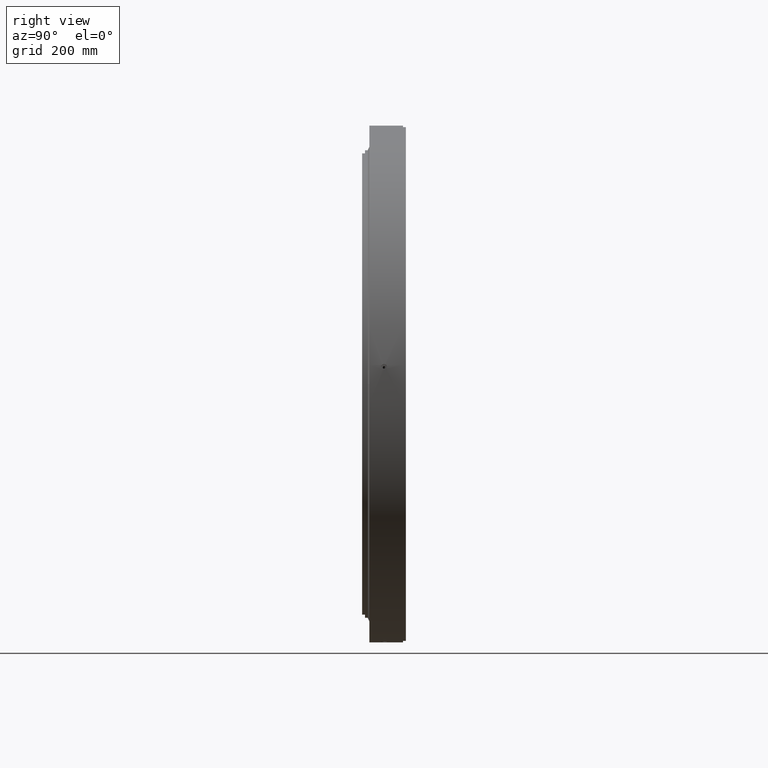
[diagram: clean part render]
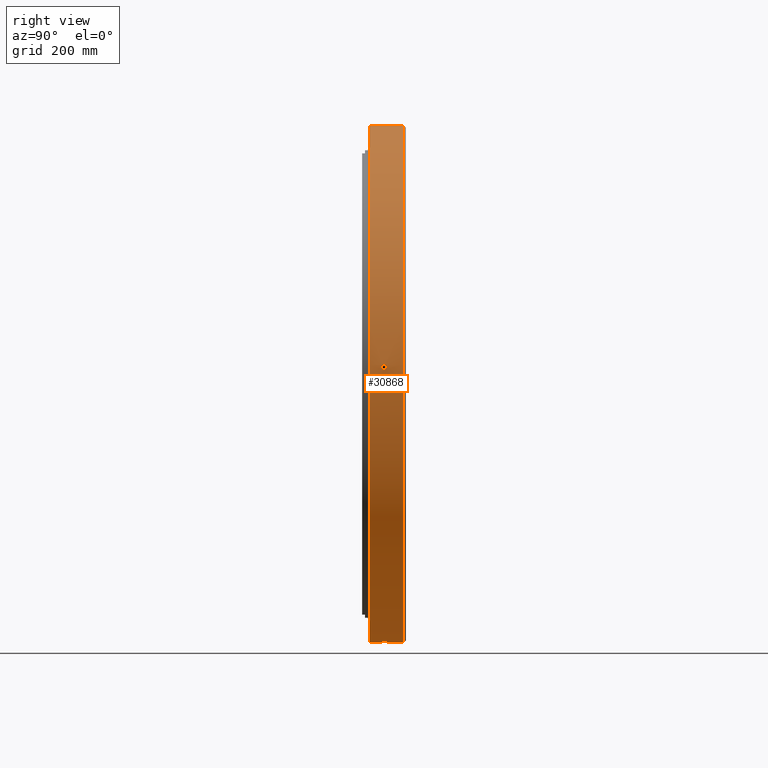
[diagram: same view with one face highlighted and labeled with its STEP entity id]
A machine part, right view. The second image highlights one B-rep face of the part: STEP entity #30868.
In plain terms, the highlighted cylindrical surface (partial cylindrical patch) has radius 885 mm, axis along (0, -1, -0).
Its self-contained STEP definition (entity closure, byte-faithful):
#24 = CYLINDRICAL_SURFACE ( 'NONE', #15015, 885.0000000000000000 ) ;
#264 = CARTESIAN_POINT ( 'NONE',  ( 5.868486117720941300E-015, -49.99999999999983700, -1.747108677692886300E-015 ) ) ;
#267 = ORIENTED_EDGE ( 'NONE', *, *, #1786, .T. ) ;
#404 = CARTESIAN_POINT ( 'NONE',  ( 62.29941552682247900, -8.990270794557361000, -882.8047069699458700 ) ) ;
#762 = FACE_BOUND ( 'NONE', #16163, .T. ) ;
#877 = CARTESIAN_POINT ( 'NONE',  ( 56.25334402260552500, 9.871374846293925000, -883.2104302514859500 ) ) ;
#1034 = AXIS2_PLACEMENT_3D ( 'NONE', #264, #17235, #2693 ) ;
#1195 = CARTESIAN_POINT ( 'NONE',  ( 56.57931960088866700, 9.919929255017958500, -883.1896104815193700 ) ) ;
#1300 = CARTESIAN_POINT ( 'NONE',  ( 57.23361204977461400, 9.984318080411858500, -883.1474515168646300 ) ) ;
#1402 = CARTESIAN_POINT ( 'NONE',  ( 49.22887499094591800, -4.996086056304803500, -883.6297536602289700 ) ) ;
#1665 = CARTESIAN_POINT ( 'NONE',  ( 57.55988368185703800, 10.00011495659899000, -883.1262458705939500 ) ) ;
#1739 = CARTESIAN_POINT ( 'NONE',  ( 48.92154014800890100, -4.419255500901696700, -883.6468223199005900 ) ) ;
#1786 = EDGE_CURVE ( 'NONE', #27365, #23092, #23602, .T. ) ;
#1822 = EDGE_CURVE ( 'NONE', #18197, #6204, #4213, .T. ) ;
#1921 = CARTESIAN_POINT ( 'NONE',  ( 54.35569938037411200, -9.360757507324834100, -883.3292417374498200 ) ) ;
#1953 = CARTESIAN_POINT ( 'NONE',  ( 58.53615190726176800, 9.999768161563082500, -883.0622539434684800 ) ) ;
#1988 = CARTESIAN_POINT ( 'NONE',  ( 883.6889657356722400, -2.267618321066065900, 48.15408519604177000 ) ) ;
#2086 = EDGE_LOOP ( 'NONE', ( #14057, #17652, #22230, #25609 ) ) ;
#2094 = CARTESIAN_POINT ( 'NONE',  ( 883.4190755897365100, -8.676807746895006400, 52.87752417394028700 ) ) ;
#2201 = CARTESIAN_POINT ( 'NONE',  ( 882.8681250928948400, -9.366456902458196500, 61.39190215961385600 ) ) ;
#2310 = CARTESIAN_POINT ( 'NONE',  ( 882.3997151043480500, -1.314305108829452600, 67.79203143187361000 ) ) ;
#2498 = EDGE_CURVE ( 'NONE', #22643, #16575, #27152, .T. ) ;
#2693 = DIRECTION ( 'NONE',  ( 5.551115123125782700E-017, -3.136223233404397100E-017, 1.000000000000000000 ) ) ;
#2838 = ORIENTED_EDGE ( 'NONE', *, *, #23667, .T. ) ;
#2872 = CARTESIAN_POINT ( 'NONE',  ( 62.87260099703114200, -8.683411951547551400, -882.7640291631956900 ) ) ;
#3133 = CARTESIAN_POINT ( 'NONE',  ( 47.96264874420401700, -1.301011658162119400, -883.6993836490094100 ) ) ;
#3195 = CARTESIAN_POINT ( 'NONE',  ( 59.18362575277633700, 9.936341989846640700, -883.0190910164627700 ) ) ;
#3224 = CARTESIAN_POINT ( 'NONE',  ( 48.64372355433995700, -3.829898801211826700, -883.6621719792250400 ) ) ;
#3297 = CARTESIAN_POINT ( 'NONE',  ( 60.14964515407002900, 9.743822340480907200, -882.9536365812396100 ) ) ;
#3767 = DIRECTION ( 'NONE',  ( 5.551115123125782700E-017, -3.528251137579946500E-017, 1.000000000000000000 ) ) ;
#3838 = CARTESIAN_POINT ( 'NONE',  ( 60.46976864643722400, 9.663293480045704000, -882.9317669364299900 ) ) ;
#3902 = VECTOR ( 'NONE', #26225, 1000.000000000000000 ) ;
#4213 = CIRCLE ( 'NONE', #4615, 885.0000000000000000 ) ;
#4355 = CARTESIAN_POINT ( 'NONE',  ( 51.29065756894728200, -7.516660450571203400, -883.5124974038608300 ) ) ;
#4417 = CARTESIAN_POINT ( 'NONE',  ( 883.6742052955746700, -3.215786242672058000, 48.42424938727476300 ) ) ;
#4536 = CARTESIAN_POINT ( 'NONE',  ( 883.3292417374499300, -9.360757507324773700, 54.35569938037723100 ) ) ;
#4615 = AXIS2_PLACEMENT_3D ( 'NONE', #19290, #19249, #19152 ) ;
#4644 = CARTESIAN_POINT ( 'NONE',  ( 882.7640291631953500, -8.683411951547482100, 62.87260099703417600 ) ) ;
#4739 = CARTESIAN_POINT ( 'NONE',  ( 882.3947377639051400, -1.352003341410987000E-008, 67.85666339107274300 ) ) ;
#4989 = CARTESIAN_POINT ( 'NONE',  ( 48.15408519603870000, -2.267618321066129800, -883.6889657356727000 ) ) ;
#5334 = CARTESIAN_POINT ( 'NONE',  ( 61.09434352132870300, 9.473099254216954500, -882.8887694241772100 ) ) ;
#5349 = CARTESIAN_POINT ( 'NONE',  ( 61.70669037884856300, 9.253145743511796100, -882.8462809660363700 ) ) ;
#5390 = CARTESIAN_POINT ( 'NONE',  ( 67.34280538162494200, -3.235007051154269700, -882.4341386171348600 ) ) ;
#5635 = CARTESIAN_POINT ( 'NONE',  ( 62.29491581016201700, 8.974476701232275000, -882.8048633872322200 ) ) ;
#5665 = CARTESIAN_POINT ( 'NONE',  ( 63.95634487619975100, -7.959311221972182400, -882.6861736147492400 ) ) ;
#5713 = VECTOR ( 'NONE', #8485, 1000.000000000000000 ) ;
#5750 = CARTESIAN_POINT ( 'NONE',  ( 62.87089883971965100, 8.666000667659735900, -882.7640304379370900 ) ) ;
#5854 = CARTESIAN_POINT ( 'NONE',  ( 63.15427812439049400, 8.495789209440225400, -882.7437974112118600 ) ) ;
#6071 = CARTESIAN_POINT ( 'NONE',  ( 63.97218189525186500, 7.947530899147825100, -882.6850280802759700 ) ) ;
#6204 = VERTEX_POINT ( 'NONE', #15080 ) ;
#6228 = CARTESIAN_POINT ( 'NONE',  ( 64.47440136699485400, 7.533584005054158300, -882.6484376526019600 ) ) ;
#6382 = CARTESIAN_POINT ( 'NONE',  ( 49.39817126832417000, -5.279511856852857400, -883.6203110567349800 ) ) ;
#6500 = CARTESIAN_POINT ( 'NONE',  ( 60.45435138532937500, -9.667447787200632800, -882.9328229387989500 ) ) ;
#6594 = CARTESIAN_POINT ( 'NONE',  ( 65.16468817020344800, 6.841700400301204100, -882.5976527536390700 ) ) ;
#6639 = CARTESIAN_POINT ( 'NONE',  ( 53.45060005424829100, -8.984165439132979700, -883.3846267669554200 ) ) ;
#6714 = ORIENTED_EDGE ( 'NONE', *, *, #2498, .T. ) ;
#6892 = CARTESIAN_POINT ( 'NONE',  ( 883.6468223199007100, -4.419255500901635400, 48.92154014801199200 ) ) ;
#6932 = CARTESIAN_POINT ( 'NONE',  ( 65.80444305810468100, -6.111912450537783300, -882.5502301899014100 ) ) ;
#6953 = CARTESIAN_POINT ( 'NONE',  ( 48.42424938727167200, -3.215786242672114400, -883.6742052955746700 ) ) ;
#7001 = CARTESIAN_POINT ( 'NONE',  ( 883.2709710582223600, -9.663694792832206600, 55.29458008441866200 ) ) ;
#7086 = ORIENTED_EDGE ( 'NONE', *, *, #12374, .T. ) ;
#7100 = CARTESIAN_POINT ( 'NONE',  ( 882.6487471101659100, -7.537333805380826300, 64.47016822547959700 ) ) ;
#7327 = CARTESIAN_POINT ( 'NONE',  ( 52.06330653263065500, -8.131522021911420600, -883.4673089778348200 ) ) ;
#7425 = CARTESIAN_POINT ( 'NONE',  ( 57.21545463511615300, -9.999441698918659000, -883.1488133189528800 ) ) ;
#8097 = CARTESIAN_POINT ( 'NONE',  ( 65.38420152472980400, 6.599160709530137200, -882.5814126424918400 ) ) ;
#8192 = CARTESIAN_POINT ( 'NONE',  ( 65.80138594271248600, 6.089490277924898700, -882.5504072624189600 ) ) ;
#8409 = CARTESIAN_POINT ( 'NONE',  ( 65.99706385217386600, 5.824604220978236500, -882.5357899220224500 ) ) ;
#8485 = DIRECTION ( 'NONE',  ( 1.173697223544192200E-016, -1.000000000000000000, -3.494217355385783800E-017 ) ) ;
#8731 = CARTESIAN_POINT ( 'NONE',  ( 66.53994168358922000, 5.009275018486476900, -882.4950809394508700 ) ) ;
#8895 = CARTESIAN_POINT ( 'NONE',  ( 47.89948492629761000, -1.352009949760945100E-008, -883.7028003485082800 ) ) ;
#8991 = CARTESIAN_POINT ( 'NONE',  ( 47.89948492629759600, 0.6526594538620592600, -883.7028003485079400 ) ) ;
#9330 = CARTESIAN_POINT ( 'NONE',  ( 883.6203110567346400, -5.279511856852789000, 49.39817126832723900 ) ) ;
#9436 = CARTESIAN_POINT ( 'NONE',  ( 883.1905216905140600, -9.934323362693337600, 56.56775454773090700 ) ) ;
#9546 = CARTESIAN_POINT ( 'NONE',  ( 882.5502301899011900, -6.111912450537722000, 65.80444305810777900 ) ) ;
#9887 = CARTESIAN_POINT ( 'NONE',  ( 66.84630196730614700, 4.434855160143292200, -882.4718890323214300 ) ) ;
#10050 = CARTESIAN_POINT ( 'NONE',  ( 67.22177191209628700, 3.526506428143379800, -882.4433404676715300 ) ) ;
#10188 = CARTESIAN_POINT ( 'NONE',  ( -1.583888834818621200E-013, -49.99999999999980800, -885.0000000000000000 ) ) ;
#10525 = CARTESIAN_POINT ( 'NONE',  ( 67.33320866099784000, 3.214235541138280800, -882.4348406964981000 ) ) ;
#10636 = CARTESIAN_POINT ( 'NONE',  ( 67.52306150687594800, 2.585934074109055300, -882.4203336439943500 ) ) ;
#10745 = CARTESIAN_POINT ( 'NONE',  ( 67.60201232978403100, 2.269054853001812400, -882.4142859017863400 ) ) ;
#10755 = CARTESIAN_POINT ( 'NONE',  ( 66.52130575472857300, -5.009693121104200000, -882.4964248143480700 ) ) ;
#11035 = CARTESIAN_POINT ( 'NONE',  ( 882.3947377639051400, -1.352003341410987000E-008, 67.85666339107274300 ) ) ;
#11278 = CARTESIAN_POINT ( 'NONE',  ( 52.87752417393718900, -8.676807746895068600, -883.4190755897363900 ) ) ;
#11550 = CARTESIAN_POINT ( 'NONE',  ( 47.96479153772060000, 1.315472949907458700, -883.6992673448380600 ) ) ;
#11665 = CARTESIAN_POINT ( 'NONE',  ( 52.60750058463796100, 8.495861581712807400, -883.4350707847916100 ) ) ;
#11705 = CARTESIAN_POINT ( 'NONE',  ( 67.85666339106967400, -1.352009837860621400E-008, -882.3947377639053700 ) ) ;
#11708 = CARTESIAN_POINT ( 'NONE',  ( 883.7028003485080500, -1.352003395181510700E-008, 47.89948492630068700 ) ) ;
#11785 = CARTESIAN_POINT ( 'NONE',  ( 883.5661667880178800, -6.604788272057552600, 50.35912141682569400 ) ) ;
#11890 = CARTESIAN_POINT ( 'NONE',  ( 883.0625813659011100, -10.00055124821575500, 58.53129169230015100 ) ) ;
#11918 = CARTESIAN_POINT ( 'NONE',  ( 60.13847546874475800, -9.746312311610163100, -882.9543962243576500 ) ) ;
#11978 = CARTESIAN_POINT ( 'NONE',  ( 882.4964248143480700, -5.009693121104132500, 66.52130575473165700 ) ) ;
#12374 = EDGE_CURVE ( 'NONE', #16575, #22643, #27984, .T. ) ;
#12615 = CARTESIAN_POINT ( 'NONE',  ( 4.824709592200503400E-014, 65.00000000000008500, 885.0000000000000000 ) ) ;
#12988 = CARTESIAN_POINT ( 'NONE',  ( 67.85666339106970200, 0.6607289072664198600, -882.3947377639054800 ) ) ;
#13289 = CARTESIAN_POINT ( 'NONE',  ( 67.79200993786525900, 1.310414319481562500, -882.3997164136938000 ) ) ;
#13681 = FACE_BOUND ( 'NONE', #22947, .T. ) ;
#13726 = CIRCLE ( 'NONE', #1034, 885.0000000000000000 ) ;
#13776 = CARTESIAN_POINT ( 'NONE',  ( 48.40876120702626700, 3.220271596494643300, -883.6750844288988000 ) ) ;
#14057 = ORIENTED_EDGE ( 'NONE', *, *, #20129, .F. ) ;
#14219 = CARTESIAN_POINT ( 'NONE',  ( 883.5124974038602700, -7.516660450571140300, 51.29065756895035800 ) ) ;
#14316 = CARTESIAN_POINT ( 'NONE',  ( 882.9543962243573100, -9.746312311610099100, 60.13847546874782800 ) ) ;
#14356 = VERTEX_POINT ( 'NONE', #22916 ) ;
#14421 = CARTESIAN_POINT ( 'NONE',  ( 882.4625530343322500, -4.137153007028541800, 66.96908316929435000 ) ) ;
#14567 = CARTESIAN_POINT ( 'NONE',  ( 67.85666339106967400, -0.6605797553291070700, -882.3947377639054800 ) ) ;
#15015 = AXIS2_PLACEMENT_3D ( 'NONE', #25573, #28013, #3767 ) ;
#15080 = CARTESIAN_POINT ( 'NONE',  ( -1.583888834818621200E-013, 65.00000000000025600, -885.0000000000000000 ) ) ;
#15188 = FACE_OUTER_BOUND ( 'NONE', #2086, .T. ) ;
#15428 = CARTESIAN_POINT ( 'NONE',  ( 50.35912141682261700, -6.604788272057617400, -883.5661667880181100 ) ) ;
#15623 = CARTESIAN_POINT ( 'NONE',  ( 67.53400793586783400, -2.608101606462637000, -882.4195003024430000 ) ) ;
#15974 = CARTESIAN_POINT ( 'NONE',  ( 49.40328008507754000, 5.287522384317467700, -883.6200250691405200 ) ) ;
#16163 = EDGE_LOOP ( 'NONE', ( #6714, #7086 ) ) ;
#16184 = CARTESIAN_POINT ( 'NONE',  ( 48.22001558536597800, 2.596812644050630500, -883.6853775128383900 ) ) ;
#16297 = CARTESIAN_POINT ( 'NONE',  ( 48.92638055531968900, 4.429171526910962200, -883.6465544799923500 ) ) ;
#16526 = CARTESIAN_POINT ( 'NONE',  ( 883.6993836490094100, -1.301011658162057700, 47.96264874420711500 ) ) ;
#16575 = VERTEX_POINT ( 'NONE', #25811 ) ;
#16636 = CARTESIAN_POINT ( 'NONE',  ( 883.4673089778348200, -8.131522021911363800, 52.06330653263374600 ) ) ;
#16747 = CARTESIAN_POINT ( 'NONE',  ( 882.8897397687142100, -9.477884546346024000, 61.08032281536419800 ) ) ;
#16789 = CARTESIAN_POINT ( 'NONE',  ( 65.39150994406429600, -6.614843117018335900, -882.5809672734858400 ) ) ;
#16832 = B_SPLINE_CURVE_WITH_KNOTS ( 'NONE', 3,
 ( #28595, #31052, #16526, #1988, #18969, #4417, #21391, #6892, #23812, #9330, #26255, #11785, #28694, #14219, #31166, #16636, #2094, #19081, #4536, #21488, #7001, #23916, #9436, #26354, #11890, #28806, #14316, #31280, #16747, #2201, #19182, #4644, #21600, #7100, #24017, #9546, #26458, #11978, #28911, #14421, #31366, #16852, #2310, #19283, #4739 ),
 .UNSPECIFIED., .F., .F.,
 ( 4, 2, 2, 1, 2, 2, 2, 2, 2, 2, 2, 2, 2, 2, 2, 2, 2, 2, 2, 2, 2, 2, 4 ),
 ( 0.03126482119763824400, 0.03321843133796025700, 0.03419523640812126300, 0.03517204147828226900, 0.03614884654844328200, 0.03712565161860428800, 0.03907926175892630800, 0.04005606682908731400, 0.04103287189924831300, 0.04298648203957032600, 0.04396328710973131800, 0.04494009217989231000, 0.04689370232021429500, 0.04884731246053628000, 0.04982411753069727900, 0.05080092260085826400, 0.05275453274118024900, 0.05470814288150223400, 0.05666175302182422500, 0.05763855809198521800, 0.05861536316214620300, 0.06056897330246818800, 0.06252258344279017200 ),
 .UNSPECIFIED. ) ;
#16852 = CARTESIAN_POINT ( 'NONE',  ( 882.4195003024424300, -2.608101606462575700, 67.53400793587093200 ) ) ;
#16983 = CARTESIAN_POINT ( 'NONE',  ( 51.79821426944626900, -7.934505528327696800, -883.4828858677218500 ) ) ;
#17235 = DIRECTION ( 'NONE',  ( 1.173697223544192200E-016, -1.000000000000000000, -3.494217355385783800E-017 ) ) ;
#17550 = CARTESIAN_POINT ( 'NONE',  ( 66.96908316929129500, -4.137153007028600400, -882.4625530343328100 ) ) ;
#17652 = ORIENTED_EDGE ( 'NONE', *, *, #1822, .F. ) ;
#18197 = VERTEX_POINT ( 'NONE', #12615 ) ;
#18537 = CARTESIAN_POINT ( 'NONE',  ( 48.78469472868631800, 4.129327126259592100, -883.6543834049226700 ) ) ;
#18750 = CARTESIAN_POINT ( 'NONE',  ( 49.23547547351110900, 5.007611768937222200, -883.6293860626769900 ) ) ;
#18969 = CARTESIAN_POINT ( 'NONE',  ( 883.6845859646593900, -2.589085531514298700, 48.23444373012908000 ) ) ;
#19081 = CARTESIAN_POINT ( 'NONE',  ( 883.3846267669550800, -8.984165439132917500, 53.45060005425136000 ) ) ;
#19152 = DIRECTION ( 'NONE',  ( -5.551115123125783900E-017, 9.408669700213190600E-017, -1.000000000000000000 ) ) ;
#19182 = CARTESIAN_POINT ( 'NONE',  ( 882.8047069699455300, -8.990270794557297100, 62.29941552682552700 ) ) ;
#19249 = DIRECTION ( 'NONE',  ( -1.173697223544192200E-016, 1.000000000000000000, 8.822830751849692900E-017 ) ) ;
#19283 = CARTESIAN_POINT ( 'NONE',  ( 882.3947377639051400, -0.6605797553290472200, 67.85666339107274300 ) ) ;
#19290 = CARTESIAN_POINT ( 'NONE',  ( -7.629031953037269600E-015, 65.00000000000017100, 2.271241281000765500E-015 ) ) ;
#19320 = CARTESIAN_POINT ( 'NONE',  ( 54.66682491948390100, -9.472603202104766100, -883.3100458808727400 ) ) ;
#20129 = EDGE_CURVE ( 'NONE', #6204, #24858, #21727, .T. ) ;
#20684 = CARTESIAN_POINT ( 'NONE',  ( 66.35104429843018200, -5.293927495397670500, -882.5092477159184900 ) ) ;
#20989 = CARTESIAN_POINT ( 'NONE',  ( 64.47016822547652700, -7.537333805380892900, -882.6487471101660300 ) ) ;
#21040 = CARTESIAN_POINT ( 'NONE',  ( 49.94563690131751300, 6.099904737590013500, -883.5895905339388000 ) ) ;
#21233 = CARTESIAN_POINT ( 'NONE',  ( 66.82980921097541200, -4.431991344998828600, -882.4731160382422100 ) ) ;
#21271 = CARTESIAN_POINT ( 'NONE',  ( 50.35959545987415000, 6.606144068176914400, -883.5661430436924800 ) ) ;
#21391 = CARTESIAN_POINT ( 'NONE',  ( 883.6621719792250400, -3.829898801211762700, 48.64372355434305500 ) ) ;
#21488 = CARTESIAN_POINT ( 'NONE',  ( 883.3100458808728500, -9.472603202104700400, 54.66682491948697700 ) ) ;
#21600 = CARTESIAN_POINT ( 'NONE',  ( 882.6861736147485500, -7.959311221972113200, 63.95634487620280600 ) ) ;
#21727 = LINE ( 'NONE', #23779, #3902 ) ;
#21801 = CARTESIAN_POINT ( 'NONE',  ( 883.7028003485080500, -1.352003395181510700E-008, 47.89948492630068700 ) ) ;
#21901 = CARTESIAN_POINT ( 'NONE',  ( 883.7028003485080500, 0.6526594538621187700, 47.89948492630068000 ) ) ;
#22018 = CARTESIAN_POINT ( 'NONE',  ( 883.6992673448381800, 1.315472949907510000, 47.96479153772367000 ) ) ;
#22129 = CARTESIAN_POINT ( 'NONE',  ( 883.6853775128380400, 2.596812644050683800, 48.22001558536904800 ) ) ;
#22223 = CARTESIAN_POINT ( 'NONE',  ( 883.6750844288984600, 3.220271596494696600, 48.40876120702934300 ) ) ;
#22230 = ORIENTED_EDGE ( 'NONE', *, *, #23469, .T. ) ;
#22337 = CARTESIAN_POINT ( 'NONE',  ( 883.6543834049230100, 4.129327126259648000, 48.78469472868941600 ) ) ;
#22606 = CARTESIAN_POINT ( 'NONE',  ( 883.6465544799922300, 4.429171526911019000, 48.92638055532279400 ) ) ;
#22643 = VERTEX_POINT ( 'NONE', #27362 ) ;
#22723 = CARTESIAN_POINT ( 'NONE',  ( 883.6293860626766400, 5.007611768937274600, 49.23547547351417100 ) ) ;
#22831 = CARTESIAN_POINT ( 'NONE',  ( 883.6200250691403000, 5.287522384317521900, 49.40328008508062400 ) ) ;
#22916 = CARTESIAN_POINT ( 'NONE',  ( 5.499585495738411900E-014, -49.99999999999986500, 885.0000000000000000 ) ) ;
#22929 = CARTESIAN_POINT ( 'NONE',  ( 883.5895905339389200, 6.099904737590068600, 49.94563690132060400 ) ) ;
#22947 = EDGE_LOOP ( 'NONE', ( #267, #2838 ) ) ;
#23035 = CARTESIAN_POINT ( 'NONE',  ( 883.5661430436924800, 6.606144068176981000, 50.35959545987723400 ) ) ;
#23092 = VERTEX_POINT ( 'NONE', #11708 ) ;
#23138 = CARTESIAN_POINT ( 'NONE',  ( 883.5125156712034600, 7.539442322685272500, 51.29183795040522400 ) ) ;
#23240 = CARTESIAN_POINT ( 'NONE',  ( 883.4831398355602200, 7.952786342109283700, 51.79609316799678700 ) ) ;
#23260 = CARTESIAN_POINT ( 'NONE',  ( 54.67111268217960400, 9.490994421358692500, -883.3099319762012600 ) ) ;
#23343 = CARTESIAN_POINT ( 'NONE',  ( 883.4350707847916100, 8.495861581712869500, 52.60750058464105900 ) ) ;
#23461 = CARTESIAN_POINT ( 'NONE',  ( 883.4183760427574700, 8.663968554596081600, 52.88720821665153700 ) ) ;
#23469 = EDGE_CURVE ( 'NONE', #18197, #14356, #25039, .T. ) ;
#23546 = CARTESIAN_POINT ( 'NONE',  ( 67.85666339106967400, -1.352009837860621400E-008, -882.3947377639053700 ) ) ;
#23598 = CARTESIAN_POINT ( 'NONE',  ( 51.29183795040214000, 7.539442322685205900, -883.5125156712034600 ) ) ;
#23602 = B_SPLINE_CURVE_WITH_KNOTS ( 'NONE', 3,
 ( #28230, #28769, #28660, #28128, #28015, #27487, #27293, #27187, #27087, #26987, #26874, #26675, #26642, #26577, #26532, #26424, #26224, #25996, #25905, #25673, #25574, #25468, #25362, #25256, #25155, #24839, #24750, #24645, #24434, #24224, #24180, #24076, #23461, #23343, #23240, #23138, #23035, #22929, #22831, #22723, #22606, #22337, #22223, #22129, #22018, #21901, #21801 ),
 .UNSPECIFIED., .F., .F.,
 ( 4, 2, 2, 2, 2, 2, 2, 2, 2, 1, 2, 2, 2, 2, 2, 2, 2, 2, 2, 2, 2, 2, 2, 4 ),
 ( 3.336576860688975000E-018, 0.001954051324852319600, 0.002931076987278480700, 0.003908102649704642600, 0.005862153974556950100, 0.006839179636983111100, 0.007816205299409271400, 0.009770256624261619600, 0.01074728228668779400, 0.01172430794911398300, 0.01270133361154019600, 0.01367835927396640600, 0.01563241059881880300, 0.01660943626124501300, 0.01758646192367122400, 0.01954051324852364200, 0.02051753891094985200, 0.02149456457337605600, 0.02344861589822848700, 0.02540266722308092600, 0.02637969288550714300, 0.02735671854793336700, 0.02931076987278580600, 0.03126482119763824400 ),
 .UNSPECIFIED. ) ;
#23667 = EDGE_CURVE ( 'NONE', #23092, #27365, #16832, .T. ) ;
#23779 = CARTESIAN_POINT ( 'NONE',  ( -1.549072694291953400E-013, -22.16364734299513700, -885.0000000000000000 ) ) ;
#23812 = CARTESIAN_POINT ( 'NONE',  ( 883.6297536602285200, -4.996086056304740500, 49.22887499094900900 ) ) ;
#23916 = CARTESIAN_POINT ( 'NONE',  ( 883.2511068435063600, -9.743127301890474700, 55.61100947073993700 ) ) ;
#24017 = CARTESIAN_POINT ( 'NONE',  ( 882.5809672734860700, -6.614843117018272000, 65.39150994406740800 ) ) ;
#24076 = CARTESIAN_POINT ( 'NONE',  ( 883.3835626841065500, 8.973712929108174300, 53.46555061448132300 ) ) ;
#24180 = CARTESIAN_POINT ( 'NONE',  ( 883.3654086002534300, 9.115353289172848200, 53.76473296627264600 ) ) ;
#24187 = EDGE_CURVE ( 'NONE', #24858, #14356, #13726, .T. ) ;
#24224 = CARTESIAN_POINT ( 'NONE',  ( 883.3099319762012600, 9.490994421358760000, 54.67111268218270200 ) ) ;
#24366 = CARTESIAN_POINT ( 'NONE',  ( 59.18233914597220700, -9.936060684691812000, -883.0191724462790700 ) ) ;
#24434 = CARTESIAN_POINT ( 'NONE',  ( 883.2712276239801700, 9.679868885965333900, 55.29330634523372400 ) ) ;
#24645 = CARTESIAN_POINT ( 'NONE',  ( 883.2104302514856000, 9.871374846293990800, 56.25334402260859400 ) ) ;
#24738 = CARTESIAN_POINT ( 'NONE',  ( 61.39190215961080100, -9.366456902458255100, -882.8681250928948400 ) ) ;
#24750 = CARTESIAN_POINT ( 'NONE',  ( 883.1896104815189100, 9.919929255018018900, 56.57931960089173600 ) ) ;
#24839 = CARTESIAN_POINT ( 'NONE',  ( 883.1474515168645200, 9.984318080411920700, 57.23361204977769000 ) ) ;
#24858 = VERTEX_POINT ( 'NONE', #10188 ) ;
#25039 = LINE ( 'NONE', #25394, #5713 ) ;
#25048 = CARTESIAN_POINT ( 'NONE',  ( 61.08032281536112900, -9.477884546346082600, -882.8897397687145500 ) ) ;
#25155 = CARTESIAN_POINT ( 'NONE',  ( 883.1262458705933800, 10.00011495659905100, 57.55988368186011400 ) ) ;
#25256 = CARTESIAN_POINT ( 'NONE',  ( 883.0622539434682500, 9.999768161563146400, 58.53615190726483800 ) ) ;
#25323 = CARTESIAN_POINT ( 'NONE',  ( 55.61100947073686700, -9.743127301890538700, -883.2511068435065900 ) ) ;
#25362 = CARTESIAN_POINT ( 'NONE',  ( 883.0190910164626500, 9.936341989846708200, 59.18362575277943400 ) ) ;
#25394 = CARTESIAN_POINT ( 'NONE',  ( 5.172870997467178100E-014, -22.16364734299520100, 885.0000000000000000 ) ) ;
#25468 = CARTESIAN_POINT ( 'NONE',  ( 882.9536365812394900, 9.743822340480965800, 60.14964515407313400 ) ) ;
#25573 = CARTESIAN_POINT ( 'NONE',  ( 2.601341135008604100E-015, -22.16364734299516900, -7.744460120454373600E-016 ) ) ;
#25574 = CARTESIAN_POINT ( 'NONE',  ( 882.9317669364299900, 9.663293480045767900, 60.46976864644031500 ) ) ;
#25609 = ORIENTED_EDGE ( 'NONE', *, *, #24187, .F. ) ;
#25673 = CARTESIAN_POINT ( 'NONE',  ( 882.8887694241771000, 9.473099254217020300, 61.09434352133181500 ) ) ;
#25811 = CARTESIAN_POINT ( 'NONE',  ( 47.89948492629761000, -1.352009949760945100E-008, -883.7028003485082800 ) ) ;
#25905 = CARTESIAN_POINT ( 'NONE',  ( 882.8462809660361500, 9.253145743511863600, 61.70669037885164700 ) ) ;
#25996 = CARTESIAN_POINT ( 'NONE',  ( 882.8048633872322200, 8.974476701232342500, 62.29491581016509400 ) ) ;
#26020 = CARTESIAN_POINT ( 'NONE',  ( 51.79609316799370300, 7.952786342109220600, -883.4831398355609100 ) ) ;
#26224 = CARTESIAN_POINT ( 'NONE',  ( 882.7640304379366400, 8.666000667659801600, 62.87089883972271300 ) ) ;
#26225 = DIRECTION ( 'NONE',  ( 1.173697223544192200E-016, -1.000000000000000000, -3.494217355385783800E-017 ) ) ;
#26255 = CARTESIAN_POINT ( 'NONE',  ( 883.5895782366160300, -6.100976321434917100, 49.94588049341090400 ) ) ;
#26354 = CARTESIAN_POINT ( 'NONE',  ( 883.1488133189528800, -9.999441698918595000, 57.21545463511922900 ) ) ;
#26424 = CARTESIAN_POINT ( 'NONE',  ( 882.7437974112115200, 8.495789209440291100, 63.15427812439357100 ) ) ;
#26458 = CARTESIAN_POINT ( 'NONE',  ( 882.5092477159183800, -5.293927495397605700, 66.35104429843328000 ) ) ;
#26532 = CARTESIAN_POINT ( 'NONE',  ( 882.6850280802757400, 7.947530899147889000, 63.97218189525491300 ) ) ;
#26577 = CARTESIAN_POINT ( 'NONE',  ( 882.6484376526020700, 7.533584005054219500, 64.47440136699798100 ) ) ;
#26642 = CARTESIAN_POINT ( 'NONE',  ( 882.5976527536387300, 6.841700400301265400, 65.16468817020654600 ) ) ;
#26675 = CARTESIAN_POINT ( 'NONE',  ( 882.5814126424917300, 6.599160709530210900, 65.38420152473287300 ) ) ;
#26791 = CARTESIAN_POINT ( 'NONE',  ( 47.89948492629762500, -0.6525121238410739300, -883.7028003485086200 ) ) ;
#26798 = CARTESIAN_POINT ( 'NONE',  ( 51.04896265828644200, -7.296723066838578300, -883.5264888287728100 ) ) ;
#26874 = CARTESIAN_POINT ( 'NONE',  ( 882.5504072624186200, 6.089490277924973300, 65.80138594271555500 ) ) ;
#26978 = CARTESIAN_POINT ( 'NONE',  ( 56.56775454772785100, -9.934323362693405100, -883.1905216905144000 ) ) ;
#26987 = CARTESIAN_POINT ( 'NONE',  ( 882.5357899220221000, 5.824604220978302200, 65.99706385217693600 ) ) ;
#27087 = CARTESIAN_POINT ( 'NONE',  ( 882.4950809394503000, 5.009275018486540900, 66.53994168359226100 ) ) ;
#27152 = B_SPLINE_CURVE_WITH_KNOTS ( 'NONE', 3,
 ( #11705, #12988, #13289, #10745, #10636, #10525, #10050, #9887, #8731, #8409, #8192, #8097, #6594, #6228, #6071, #5854, #5750, #5635, #5349, #5334, #3838, #3297, #3195, #1953, #1665, #1300, #1195, #877, #31041, #23260, #30594, #30720, #28362, #11665, #26020, #23598, #21271, #21040, #15974, #18750, #16297, #18537, #13776, #16184, #11550, #8991, #8895 ),
 .UNSPECIFIED., .F., .F.,
 ( 4, 2, 2, 2, 2, 2, 2, 2, 2, 1, 2, 2, 2, 2, 2, 2, 2, 2, 2, 2, 2, 2, 2, 4 ),
 ( 3.737636731316154000E-018, 0.001954051324852315200, 0.002931076987278475500, 0.003908102649704635700, 0.005862153974556941400, 0.006839179636983101600, 0.007816205299409262700, 0.009770256624261609200, 0.01074728228668778300, 0.01172430794911397300, 0.01270133361154018300, 0.01367835927396639200, 0.01563241059881879300, 0.01660943626124500300, 0.01758646192367121700, 0.01954051324852363100, 0.02051753891094984200, 0.02149456457337604900, 0.02344861589822848400, 0.02540266722308092600, 0.02637969288550713600, 0.02735671854793334700, 0.02931076987278578200, 0.03126482119763822300 ),
 .UNSPECIFIED. ) ;
#27187 = CARTESIAN_POINT ( 'NONE',  ( 882.4718890323214300, 4.434855160143354300, 66.84630196730924500 ) ) ;
#27293 = CARTESIAN_POINT ( 'NONE',  ( 882.4433404676711900, 3.526506428143439300, 67.22177191209938500 ) ) ;
#27362 = CARTESIAN_POINT ( 'NONE',  ( 67.85666339106967400, -1.352009837860621400E-008, -882.3947377639053700 ) ) ;
#27365 = VERTEX_POINT ( 'NONE', #11035 ) ;
#27418 = CARTESIAN_POINT ( 'NONE',  ( 47.89948492629761000, -1.352009949760945100E-008, -883.7028003485082800 ) ) ;
#27487 = CARTESIAN_POINT ( 'NONE',  ( 882.4348406964981000, 3.214235541138339000, 67.33320866100093800 ) ) ;
#27983 = CARTESIAN_POINT ( 'NONE',  ( 58.53129169229705300, -10.00055124821581900, -883.0625813659008800 ) ) ;
#27984 = B_SPLINE_CURVE_WITH_KNOTS ( 'NONE', 3,
 ( #27418, #26791, #3133, #4989, #28298, #6953, #3224, #1739, #1402, #6382, #30291, #15428, #26798, #4355, #16983, #7327, #11278, #6639, #1921, #19320, #28418, #25323, #26978, #7425, #27983, #24366, #11918, #6500, #25048, #24738, #404, #2872, #5665, #20989, #16789, #6932, #20684, #10755, #21233, #17550, #5390, #15623, #30333, #14567, #23546 ),
 .UNSPECIFIED., .F., .F.,
 ( 4, 2, 2, 1, 2, 2, 2, 2, 2, 2, 2, 2, 2, 2, 2, 2, 2, 2, 2, 2, 2, 2, 4 ),
 ( 0.03126482119763822300, 0.03321843133796022200, 0.03419523640812122800, 0.03517204147828222700, 0.03614884654844323400, 0.03712565161860423300, 0.03907926175892623800, 0.04005606682908723100, 0.04103287189924821600, 0.04298648203957019400, 0.04396328710973117200, 0.04494009217989215800, 0.04689370232021415600, 0.04884731246053615500, 0.04982411753069715400, 0.05080092260085815300, 0.05275453274118015200, 0.05470814288150215000, 0.05666175302182414900, 0.05763855809198514800, 0.05861536316214614700, 0.06056897330246814600, 0.06252258344279014400 ),
 .UNSPECIFIED. ) ;
#28013 = DIRECTION ( 'NONE',  ( 1.173697223544192200E-016, -1.000000000000000000, -3.494217355385783800E-017 ) ) ;
#28015 = CARTESIAN_POINT ( 'NONE',  ( 882.4203336439940100, 2.585934074109113000, 67.52306150687901700 ) ) ;
#28128 = CARTESIAN_POINT ( 'NONE',  ( 882.4142859017858900, 2.269054853001873300, 67.60201232978712900 ) ) ;
#28230 = CARTESIAN_POINT ( 'NONE',  ( 882.3947377639051400, -1.352003341410987000E-008, 67.85666339107274300 ) ) ;
#28298 = CARTESIAN_POINT ( 'NONE',  ( 48.23444373012600300, -2.589085531514354600, -883.6845859646596200 ) ) ;
#28362 = CARTESIAN_POINT ( 'NONE',  ( 52.88720821664847400, 8.663968554596014100, -883.4183760427577000 ) ) ;
#28418 = CARTESIAN_POINT ( 'NONE',  ( 55.29458008441558500, -9.663694792832277600, -883.2709710582228100 ) ) ;
#28595 = CARTESIAN_POINT ( 'NONE',  ( 883.7028003485080500, -1.352003395181510700E-008, 47.89948492630068700 ) ) ;
#28660 = CARTESIAN_POINT ( 'NONE',  ( 882.3997164136936800, 1.310414319481623100, 67.79200993786832900 ) ) ;
#28694 = CARTESIAN_POINT ( 'NONE',  ( 883.5264888287724700, -7.296723066838513500, 51.04896265828953300 ) ) ;
#28769 = CARTESIAN_POINT ( 'NONE',  ( 882.3947377639051400, 0.6607289072664833700, 67.85666339107277200 ) ) ;
#28806 = CARTESIAN_POINT ( 'NONE',  ( 883.0191724462791900, -9.936060684691753400, 59.18233914597529800 ) ) ;
#28911 = CARTESIAN_POINT ( 'NONE',  ( 882.4731160382419800, -4.431991344998761100, 66.82980921097846800 ) ) ;
#30291 = CARTESIAN_POINT ( 'NONE',  ( 49.94588049340781300, -6.100976321434981900, -883.5895782366162600 ) ) ;
#30333 = CARTESIAN_POINT ( 'NONE',  ( 67.79203143187052700, -1.314305108829513700, -882.3997151043481600 ) ) ;
#30594 = CARTESIAN_POINT ( 'NONE',  ( 53.76473296626957000, 9.115353289172784200, -883.3654086002533200 ) ) ;
#30720 = CARTESIAN_POINT ( 'NONE',  ( 53.46555061447827500, 8.973712929108110400, -883.3835626841071200 ) ) ;
#30868 = ADVANCED_FACE ( 'NONE', ( #15188, #13681, #762 ), #24, .T. ) ;
#31041 = CARTESIAN_POINT ( 'NONE',  ( 55.29330634523066100, 9.679868885965268200, -883.2712276239803900 ) ) ;
#31052 = CARTESIAN_POINT ( 'NONE',  ( 883.7028003485080500, -0.6525121238410115400, 47.89948492630069400 ) ) ;
#31166 = CARTESIAN_POINT ( 'NONE',  ( 883.4828858677217300, -7.934505528327636400, 51.79821426944933900 ) ) ;
#31280 = CARTESIAN_POINT ( 'NONE',  ( 882.9328229387988400, -9.667447787200568900, 60.45435138533243700 ) ) ;
#31366 = CARTESIAN_POINT ( 'NONE',  ( 882.4341386171344100, -3.235007051154207500, 67.34280538162801100 ) ) ;